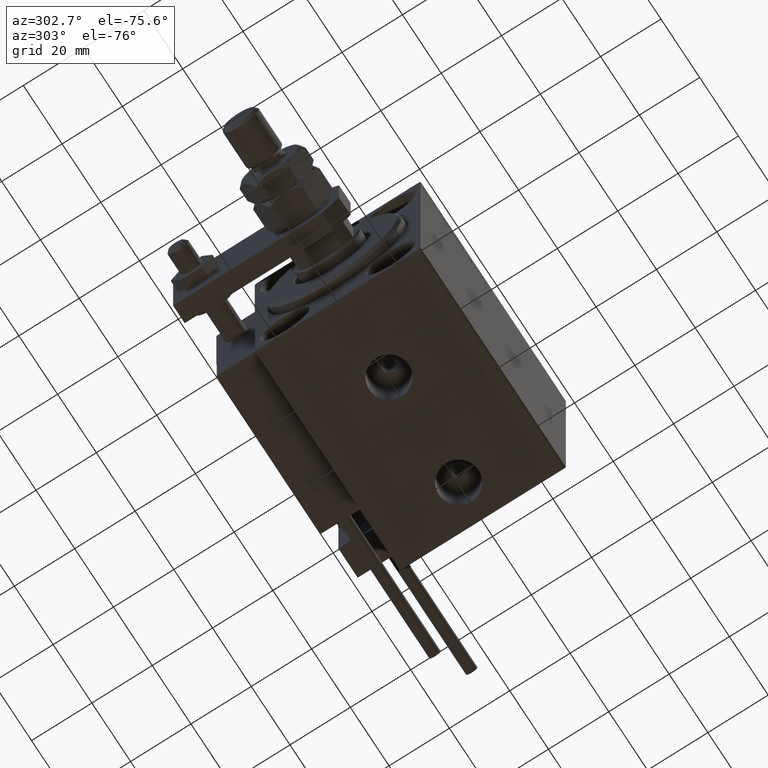
[diagram: clean part render]
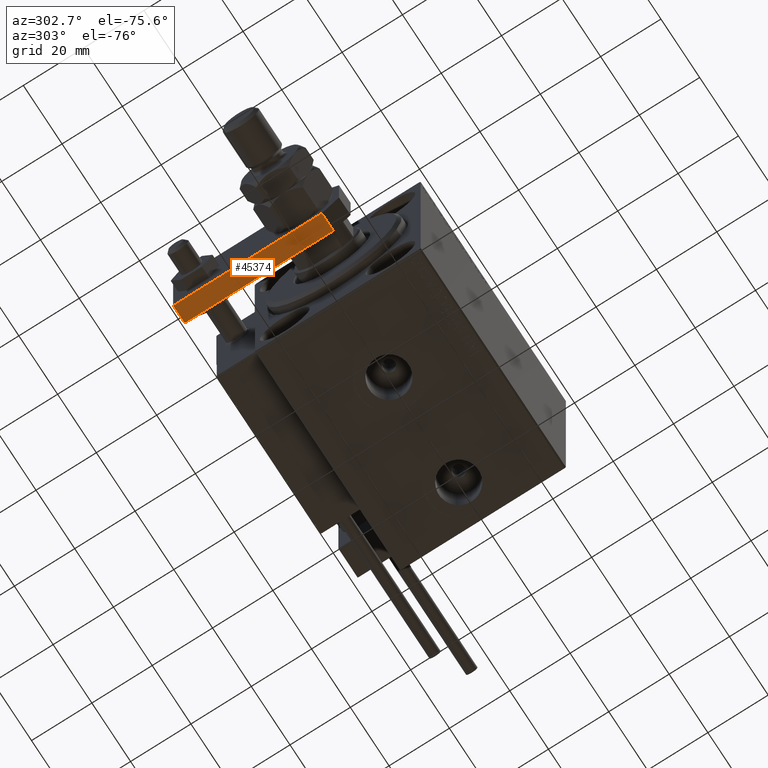
[diagram: same view with one face highlighted and labeled with its STEP entity id]
A machine part, auxiliary view. The second image highlights one B-rep face of the part: STEP entity #45374.
In plain terms, the highlighted planar face has unit normal (0, -0, 1).
Its self-contained STEP definition (entity closure, byte-faithful):
#100 = DIRECTION ( 'NONE',  ( 1.000000000000000000, -9.462128050782583143E-17, 0.000000000000000000 ) ) ;
#617 = PLANE ( 'NONE',  #36187 ) ;
#4098 = CARTESIAN_POINT ( 'NONE',  ( -12.49999999999999822, 55.00000000000000000, 6.000000000000000000 ) ) ;
#6618 = CARTESIAN_POINT ( 'NONE',  ( -12.49999999999999822, 55.00000000000000000, 0.000000000000000000 ) ) ;
#9510 = CARTESIAN_POINT ( 'NONE',  ( -12.50000000000000355, 5.660000000000005471, 0.000000000000000000 ) ) ;
#10261 = ORIENTED_EDGE ( 'NONE', *, *, #20531, .T. ) ;
#10281 = LINE ( 'NONE', #14026, #42914 ) ;
#11603 = VERTEX_POINT ( 'NONE', #9510 ) ;
#12217 = LINE ( 'NONE', #27793, #24551 ) ;
#14026 = CARTESIAN_POINT ( 'NONE',  ( -12.49999999999999822, 55.00000000000000000, 6.000000000000000000 ) ) ;
#16320 = CARTESIAN_POINT ( 'NONE',  ( -12.49999999999999822, 55.00000000000000000, 6.000000000000000000 ) ) ;
#16572 = DIRECTION ( 'NONE',  ( -0.000000000000000000, -0.000000000000000000, -1.000000000000000000 ) ) ;
#20531 = EDGE_CURVE ( 'NONE', #50584, #44739, #24134, .T. ) ;
#20995 = FACE_OUTER_BOUND ( 'NONE', #28437, .T. ) ;
#21929 = DIRECTION ( 'NONE',  ( 0.000000000000000000, 0.000000000000000000, 1.000000000000000000 ) ) ;
#22310 = ORIENTED_EDGE ( 'NONE', *, *, #40585, .F. ) ;
#23314 = EDGE_CURVE ( 'NONE', #44739, #11603, #12217, .T. ) ;
#24134 = LINE ( 'NONE', #16320, #27462 ) ;
#24551 = VECTOR ( 'NONE', #36342, 1000.000000000000000 ) ;
#24702 = VERTEX_POINT ( 'NONE', #48881 ) ;
#27462 = VECTOR ( 'NONE', #16572, 1000.000000000000000 ) ;
#27793 = CARTESIAN_POINT ( 'NONE',  ( -12.49999999999999822, 55.00000000000000000, 0.000000000000000000 ) ) ;
#28437 = EDGE_LOOP ( 'NONE', ( #40611, #41360, #22310, #10261 ) ) ;
#33323 = DIRECTION ( 'NONE',  ( 9.462128050782583143E-17, 1.000000000000000000, 0.000000000000000000 ) ) ;
#36187 = AXIS2_PLACEMENT_3D ( 'NONE', #4098, #100, #33323 ) ;
#36342 = DIRECTION ( 'NONE',  ( -9.462128050782584375E-17, -1.000000000000000000, 0.000000000000000000 ) ) ;
#40585 = EDGE_CURVE ( 'NONE', #50584, #24702, #10281, .T. ) ;
#40611 = ORIENTED_EDGE ( 'NONE', *, *, #23314, .T. ) ;
#41360 = ORIENTED_EDGE ( 'NONE', *, *, #45561, .T. ) ;
#42570 = LINE ( 'NONE', #46641, #44776 ) ;
#42753 = DIRECTION ( 'NONE',  ( -9.462128050782584375E-17, -1.000000000000000000, 0.000000000000000000 ) ) ;
#42914 = VECTOR ( 'NONE', #42753, 1000.000000000000000 ) ;
#44739 = VERTEX_POINT ( 'NONE', #6618 ) ;
#44776 = VECTOR ( 'NONE', #21929, 1000.000000000000000 ) ;
#44781 = CARTESIAN_POINT ( 'NONE',  ( -12.49999999999999822, 55.00000000000000000, 6.000000000000000000 ) ) ;
#45374 = ADVANCED_FACE ( 'NONE', ( #20995 ), #617, .F. ) ;
#45561 = EDGE_CURVE ( 'NONE', #11603, #24702, #42570, .T. ) ;
#46641 = CARTESIAN_POINT ( 'NONE',  ( -12.50000000000000355, 5.660000000000005471, 6.000000000000000000 ) ) ;
#48881 = CARTESIAN_POINT ( 'NONE',  ( -12.50000000000000355, 5.660000000000005471, 6.000000000000000000 ) ) ;
#50584 = VERTEX_POINT ( 'NONE', #44781 ) ;